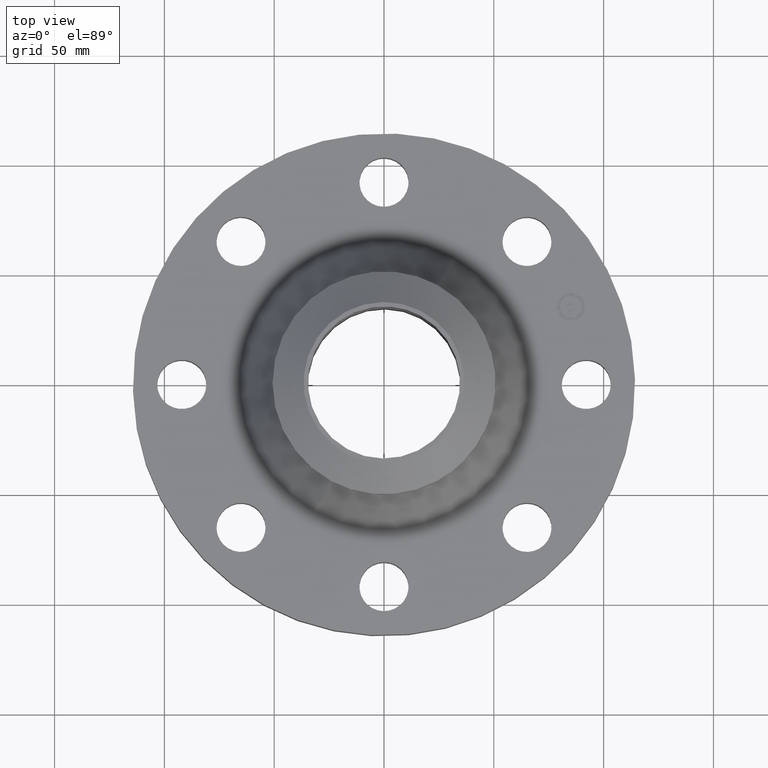
[diagram: clean part render]
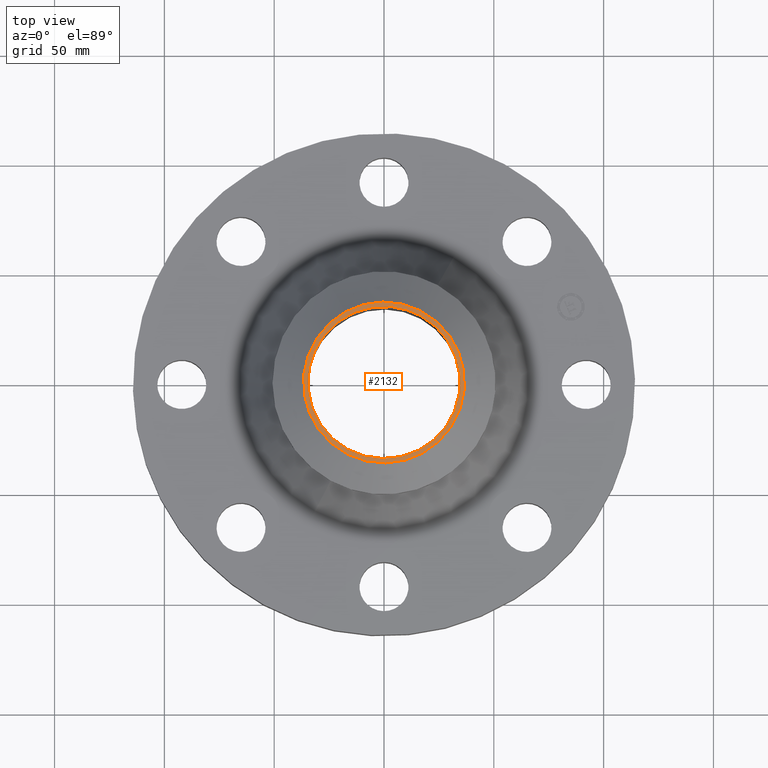
[diagram: same view with one face highlighted and labeled with its STEP entity id]
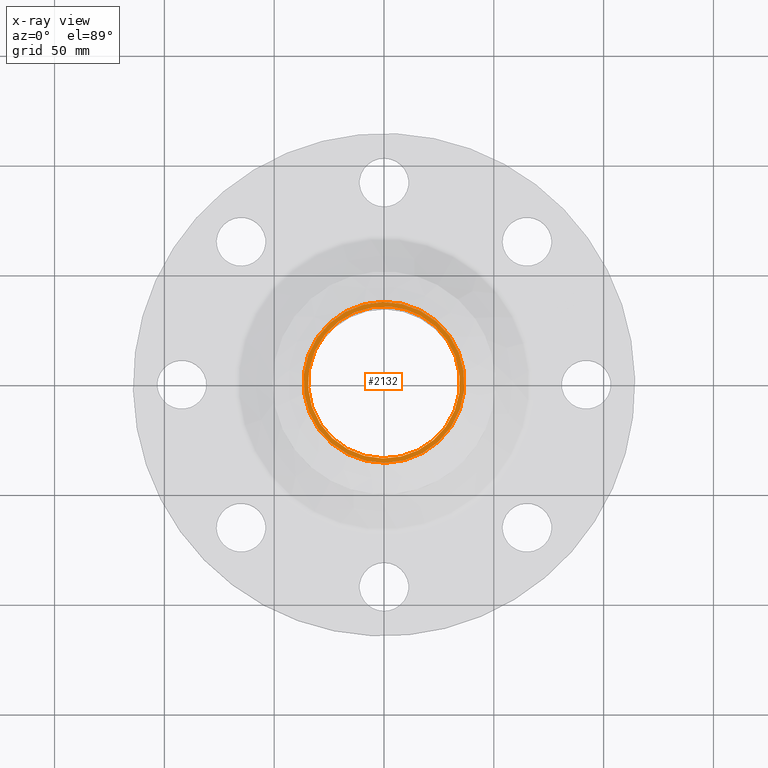
[diagram: x-ray of the same camera — body ghosted, the highlighted face saturated]
A machine part, top view. The second image highlights one B-rep face of the part: STEP entity #2132.
The next image is the same camera in x-ray: the body ghosted, the highlighted face saturated — about 0% of this face is hidden behind the body in this view.
In plain terms, the highlighted planar face has unit normal (0, 0, -1).
Its self-contained STEP definition (entity closure, byte-faithful):
#1390=AXIS2_PLACEMENT_3D('Circle Axis2P3D',#1388,#1389,$) ;
#2108=AXIS2_PLACEMENT_3D('Plane Axis2P3D',#2105,#2106,#2107) ;
#2112=AXIS2_PLACEMENT_3D('Circle Axis2P3D',#2110,#2111,$) ;
#2121=AXIS2_PLACEMENT_3D('Circle Axis2P3D',#2119,#2120,$) ;
#1388=CARTESIAN_POINT('Axis2P3D Location',(0.,0.,3.12999999999)) ;
#1392=CARTESIAN_POINT('Vertex',(0.653936434661,1.19702261443,3.12999999999)) ;
#1394=CARTESIAN_POINT('Vertex',(-0.653936434661,-1.19702261443,3.12999999999)) ;
#1427=CARTESIAN_POINT('Control Point',(-0.653936434662,-1.19702261443,3.12999999999)) ;
#1428=CARTESIAN_POINT('Control Point',(-0.841964307246,-1.09430251947,3.12999999999)) ;
#1429=CARTESIAN_POINT('Control Point',(-1.00982313635,-0.954663238073,3.12999999999)) ;
#1430=CARTESIAN_POINT('Control Point',(-1.1478148047,-0.783355499722,3.12999999999)) ;
#1431=CARTESIAN_POINT('Control Point',(-1.34919316982,-0.395864060159,3.12999999999)) ;
#1432=CARTESIAN_POINT('Control Point',(-1.3891016369,0.0390039381201,3.13)) ;
#1433=CARTESIAN_POINT('Control Point',(-1.36554361788,0.257711646016,3.13)) ;
#1434=CARTESIAN_POINT('Control Point',(-1.23394180088,0.674105478142,3.13)) ;
#1435=CARTESIAN_POINT('Control Point',(-0.954663238073,1.00982313635,3.13)) ;
#1436=CARTESIAN_POINT('Control Point',(-0.783355499723,1.1478148047,3.13)) ;
#1437=CARTESIAN_POINT('Control Point',(-0.39586406016,1.34919316982,3.13)) ;
#1438=CARTESIAN_POINT('Control Point',(0.0390039381195,1.3891016369,3.13000000001)) ;
#1439=CARTESIAN_POINT('Control Point',(0.257711646015,1.36554361788,3.13000000001)) ;
#1440=CARTESIAN_POINT('Control Point',(0.465908562078,1.29974270938,3.13000000001)) ;
#1441=CARTESIAN_POINT('Control Point',(0.653936434661,1.19702261443,3.13000000001)) ;
#2105=CARTESIAN_POINT('Axis2P3D Location',(0.,2.00000000001,3.13000000001)) ;
#2110=CARTESIAN_POINT('Axis2P3D Location',(0.,-1.93329167198E-011,3.13000000001)) ;
#2114=CARTESIAN_POINT('Vertex',(0.69168647707,-1.26612360355,3.13000000001)) ;
#2116=CARTESIAN_POINT('Vertex',(-0.691686477071,1.26612360355,3.13000000001)) ;
#2119=CARTESIAN_POINT('Axis2P3D Location',(0.,-1.93329167198E-011,3.13000000001)) ;
#1389=DIRECTION('Axis2P3D Direction',(-0.,0.,-0.0393700787402)) ;
#2106=DIRECTION('Axis2P3D Direction',(0.,0.,-0.0393700787402)) ;
#2107=DIRECTION('Axis2P3D XDirection',(0.0393700787402,0.,0.)) ;
#2111=DIRECTION('Axis2P3D Direction',(0.,0.,-0.0393700787402)) ;
#2120=DIRECTION('Axis2P3D Direction',(0.,0.,-0.0393700787402)) ;
#2125=ORIENTED_EDGE('',*,*,#2118,.T.) ;
#2126=ORIENTED_EDGE('',*,*,#2123,.T.) ;
#2129=ORIENTED_EDGE('',*,*,#1442,.T.) ;
#2130=ORIENTED_EDGE('',*,*,#1396,.T.) ;
#2131=FACE_BOUND('',#2128,.T.) ;
#2132=ADVANCED_FACE('PartBody',(#2127,#2131),#2109,.F.) ;
#1426=B_SPLINE_CURVE_WITH_KNOTS('',5,(#1427,#1428,#1429,#1430,#1431,#1432,#1433,#1434,#1435,#1436,#1437,#1438,#1439,#1440,#1441),.UNSPECIFIED.,.F.,.U.,(6,3,3,3,6),(-54.42118122,-27.21059061,3.5527136788E-015,27.21059061,54.42118122),.UNSPECIFIED.) ;
#1391=CIRCLE('generated circle',#1390,1.36400000001) ;
#2113=CIRCLE('generated circle',#2112,1.44274015748) ;
#2122=CIRCLE('generated circle',#2121,1.44274015748) ;
#1396=EDGE_CURVE('',#1393,#1395,#1391,.T.) ;
#1442=EDGE_CURVE('',#1395,#1393,#1426,.T.) ;
#2118=EDGE_CURVE('',#2115,#2117,#2113,.F.) ;
#2123=EDGE_CURVE('',#2117,#2115,#2122,.F.) ;
#2124=EDGE_LOOP('',(#2125,#2126)) ;
#2128=EDGE_LOOP('',(#2129,#2130)) ;
#2127=FACE_OUTER_BOUND('',#2124,.T.) ;
#2109=PLANE('',#2108) ;
#1393=VERTEX_POINT('',#1392) ;
#1395=VERTEX_POINT('',#1394) ;
#2115=VERTEX_POINT('',#2114) ;
#2117=VERTEX_POINT('',#2116) ;